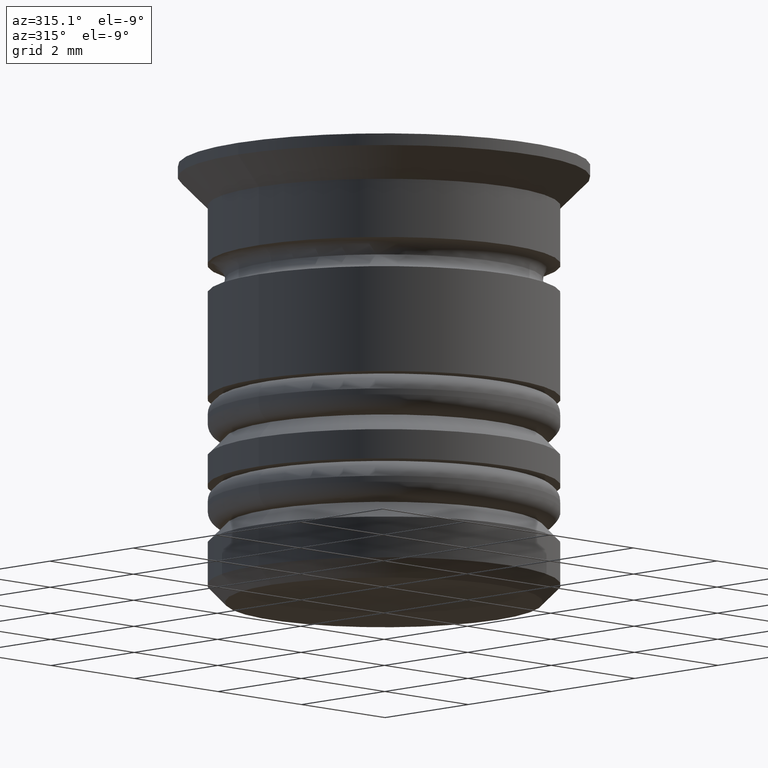
[diagram: clean part render]
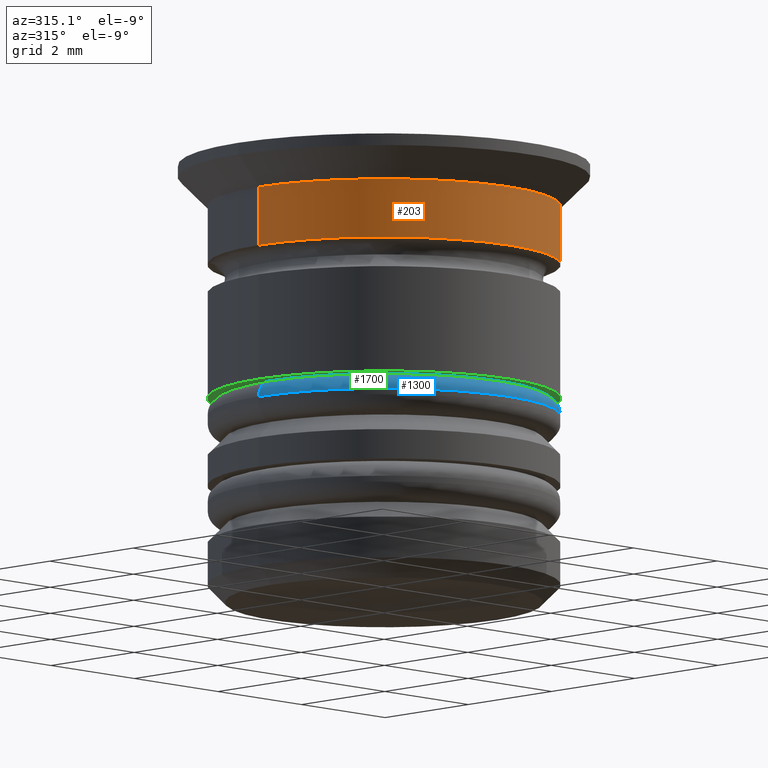
[diagram: same view with three faces highlighted in distinct colors, each labeled with its STEP entity id]
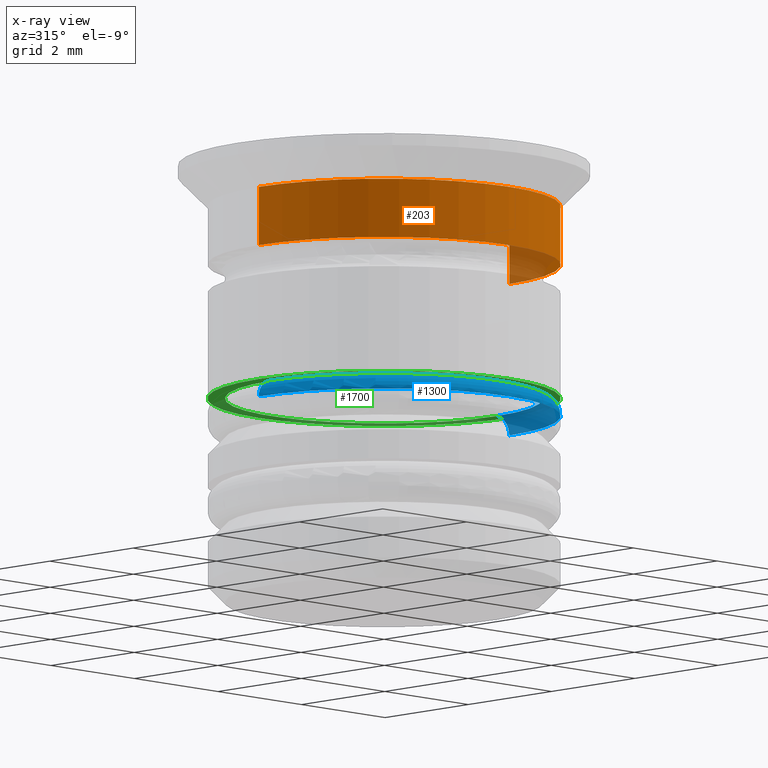
[diagram: x-ray of the same camera — body ghosted, the three highlighted faces saturated]
A machine part, auxiliary view with three faces highlighted in distinct colors.
The next image is the same camera in x-ray (body ghosted, the three faces saturated) — at least one of them is partly hidden behind the body in this view.
Their STEP definitions:

[orange] entity #203 — the highlighted cylindrical surface (partial cylindrical patch) has radius 3 mm, axis along (-0, -0, 1).
#16 = DIRECTION ( 'NONE',  ( -0.000000000000000000, -0.000000000000000000, 1.000000000000000000 ) ) ;
#80 = EDGE_CURVE ( 'NONE', #1542, #1002, #957, .T. ) ;
#100 = CARTESIAN_POINT ( 'NONE',  ( -2.999999999999999556, 3.673940397442059375E-16, 0.000000000000000000 ) ) ;
#161 = DIRECTION ( 'NONE',  ( -0.000000000000000000, -0.000000000000000000, 1.000000000000000000 ) ) ;
#203 = ADVANCED_FACE ( 'NONE', ( #1709 ), #845, .T. ) ;
#219 = EDGE_CURVE ( 'NONE', #1311, #752, #1695, .T. ) ;
#245 = CARTESIAN_POINT ( 'NONE',  ( 2.999999999999999556, 0.000000000000000000, -1.700000000000000178 ) ) ;
#313 = ORIENTED_EDGE ( 'NONE', *, *, #80, .F. ) ;
#379 = LINE ( 'NONE', #100, #558 ) ;
#410 = CARTESIAN_POINT ( 'NONE',  ( 0.000000000000000000, 0.000000000000000000, -1.700000000000000178 ) ) ;
#451 = DIRECTION ( 'NONE',  ( 1.000000000000000000, 0.000000000000000000, 0.000000000000000000 ) ) ;
#514 = EDGE_CURVE ( 'NONE', #1311, #1542, #379, .T. ) ;
#555 = AXIS2_PLACEMENT_3D ( 'NONE', #410, #574, #451 ) ;
#558 = VECTOR ( 'NONE', #1081, 1000.000000000000000 ) ;
#574 = DIRECTION ( 'NONE',  ( -0.000000000000000000, -0.000000000000000000, 1.000000000000000000 ) ) ;
#607 = CARTESIAN_POINT ( 'NONE',  ( -2.999999999999999556, 3.673940397442059375E-16, -0.6999999999999999556 ) ) ;
#625 = AXIS2_PLACEMENT_3D ( 'NONE', #713, #1272, #1678 ) ;
#697 = LINE ( 'NONE', #1421, #1470 ) ;
#713 = CARTESIAN_POINT ( 'NONE',  ( 0.000000000000000000, 0.000000000000000000, 0.000000000000000000 ) ) ;
#724 = CARTESIAN_POINT ( 'NONE',  ( -2.999999999999999556, 3.673940397442059375E-16, -1.700000000000000178 ) ) ;
#752 = VERTEX_POINT ( 'NONE', #245 ) ;
#837 = DIRECTION ( 'NONE',  ( 1.000000000000000000, 0.000000000000000000, 0.000000000000000000 ) ) ;
#845 = CYLINDRICAL_SURFACE ( 'NONE', #625, 2.999999999999999556 ) ;
#937 = AXIS2_PLACEMENT_3D ( 'NONE', #1123, #16, #837 ) ;
#957 = CIRCLE ( 'NONE', #937, 2.999999999999999556 ) ;
#1002 = VERTEX_POINT ( 'NONE', #1819 ) ;
#1081 = DIRECTION ( 'NONE',  ( -0.000000000000000000, -0.000000000000000000, 1.000000000000000000 ) ) ;
#1123 = CARTESIAN_POINT ( 'NONE',  ( 0.000000000000000000, 0.000000000000000000, -0.6999999999999999556 ) ) ;
#1229 = ORIENTED_EDGE ( 'NONE', *, *, #514, .F. ) ;
#1272 = DIRECTION ( 'NONE',  ( -0.000000000000000000, -0.000000000000000000, 1.000000000000000000 ) ) ;
#1311 = VERTEX_POINT ( 'NONE', #724 ) ;
#1367 = EDGE_CURVE ( 'NONE', #752, #1002, #697, .T. ) ;
#1421 = CARTESIAN_POINT ( 'NONE',  ( 2.999999999999999556, 0.000000000000000000, 0.000000000000000000 ) ) ;
#1436 = EDGE_LOOP ( 'NONE', ( #1229, #1532, #1588, #313 ) ) ;
#1470 = VECTOR ( 'NONE', #161, 1000.000000000000000 ) ;
#1532 = ORIENTED_EDGE ( 'NONE', *, *, #219, .T. ) ;
#1542 = VERTEX_POINT ( 'NONE', #607 ) ;
#1588 = ORIENTED_EDGE ( 'NONE', *, *, #1367, .T. ) ;
#1678 = DIRECTION ( 'NONE',  ( 1.000000000000000000, 0.000000000000000000, 0.000000000000000000 ) ) ;
#1695 = CIRCLE ( 'NONE', #555, 2.999999999999999556 ) ;
#1709 = FACE_OUTER_BOUND ( 'NONE', #1436, .T. ) ;
#1819 = CARTESIAN_POINT ( 'NONE',  ( 2.999999999999999556, 0.000000000000000000, -0.6999999999999999556 ) ) ;

[blue] entity #1300 — the highlighted toroidal blend (fillet) surface has major radius 2.7 mm and minor (blend) radius 0.3 mm.
#85 = ORIENTED_EDGE ( 'NONE', *, *, #867, .F. ) ;
#124 = CARTESIAN_POINT ( 'NONE',  ( 0.000000000000000000, 0.000000000000000000, -4.000000000000000000 ) ) ;
#140 = DIRECTION ( 'NONE',  ( -1.000000000000000000, 0.000000000000000000, 0.000000000000000000 ) ) ;
#238 = AXIS2_PLACEMENT_3D ( 'NONE', #124, #1676, #140 ) ;
#309 = CARTESIAN_POINT ( 'NONE',  ( 2.700000000000001510, 3.490243377569958033E-16, -4.000000000000000000 ) ) ;
#377 = ORIENTED_EDGE ( 'NONE', *, *, #1076, .F. ) ;
#382 = CIRCLE ( 'NONE', #961, 0.2999999999999999334 ) ;
#412 = EDGE_CURVE ( 'NONE', #456, #1482, #1178, .T. ) ;
#416 = DIRECTION ( 'NONE',  ( 0.000000000000000000, 0.000000000000000000, -1.000000000000000000 ) ) ;
#418 = CARTESIAN_POINT ( 'NONE',  ( -2.700000000000001510, 0.000000000000000000, -4.299999999999999822 ) ) ;
#456 = VERTEX_POINT ( 'NONE', #1098 ) ;
#489 = DIRECTION ( 'NONE',  ( -1.224646799147353207E-16, 1.000000000000000000, 0.000000000000000000 ) ) ;
#619 = VERTEX_POINT ( 'NONE', #1093 ) ;
#628 = CIRCLE ( 'NONE', #238, 2.700000000000001510 ) ;
#630 = AXIS2_PLACEMENT_3D ( 'NONE', #1402, #416, #1153 ) ;
#653 = EDGE_CURVE ( 'NONE', #619, #1482, #382, .T. ) ;
#717 = FACE_OUTER_BOUND ( 'NONE', #1598, .T. ) ;
#771 = CARTESIAN_POINT ( 'NONE',  ( 2.700000000000001510, 3.306546357697855212E-16, -4.299999999999999822 ) ) ;
#791 = AXIS2_PLACEMENT_3D ( 'NONE', #1172, #917, #1741 ) ;
#812 = CARTESIAN_POINT ( 'NONE',  ( -3.000000000000001332, 3.673940397442061347E-16, -4.299999999999999822 ) ) ;
#867 = EDGE_CURVE ( 'NONE', #619, #890, #628, .T. ) ;
#890 = VERTEX_POINT ( 'NONE', #309 ) ;
#917 = DIRECTION ( 'NONE',  ( 0.000000000000000000, 0.000000000000000000, -1.000000000000000000 ) ) ;
#961 = AXIS2_PLACEMENT_3D ( 'NONE', #418, #1157, #990 ) ;
#990 = DIRECTION ( 'NONE',  ( 0.000000000000000000, 0.000000000000000000, -1.000000000000000000 ) ) ;
#1039 = DIRECTION ( 'NONE',  ( -1.000000000000000000, -1.224646799147353207E-16, 0.000000000000000000 ) ) ;
#1076 = EDGE_CURVE ( 'NONE', #890, #456, #1330, .T. ) ;
#1093 = CARTESIAN_POINT ( 'NONE',  ( -2.700000000000001510, 0.000000000000000000, -4.000000000000000000 ) ) ;
#1098 = CARTESIAN_POINT ( 'NONE',  ( 3.000000000000001332, 0.000000000000000000, -4.299999999999999822 ) ) ;
#1141 = ORIENTED_EDGE ( 'NONE', *, *, #653, .T. ) ;
#1153 = DIRECTION ( 'NONE',  ( -1.000000000000000000, 0.000000000000000000, 0.000000000000000000 ) ) ;
#1157 = DIRECTION ( 'NONE',  ( -0.000000000000000000, -1.000000000000000000, -0.000000000000000000 ) ) ;
#1172 = CARTESIAN_POINT ( 'NONE',  ( 0.000000000000000000, 0.000000000000000000, -4.299999999999999822 ) ) ;
#1178 = CIRCLE ( 'NONE', #791, 3.000000000000001332 ) ;
#1185 = TOROIDAL_SURFACE ( 'NONE', #630, 2.700000000000001510, 0.2999999999999999889 ) ;
#1300 = ADVANCED_FACE ( 'NONE', ( #717 ), #1185, .T. ) ;
#1330 = CIRCLE ( 'NONE', #1728, 0.2999999999999999334 ) ;
#1402 = CARTESIAN_POINT ( 'NONE',  ( 0.000000000000000000, 0.000000000000000000, -4.299999999999999822 ) ) ;
#1482 = VERTEX_POINT ( 'NONE', #812 ) ;
#1598 = EDGE_LOOP ( 'NONE', ( #377, #85, #1141, #1722 ) ) ;
#1676 = DIRECTION ( 'NONE',  ( -0.000000000000000000, -0.000000000000000000, 1.000000000000000000 ) ) ;
#1722 = ORIENTED_EDGE ( 'NONE', *, *, #412, .F. ) ;
#1728 = AXIS2_PLACEMENT_3D ( 'NONE', #771, #489, #1039 ) ;
#1741 = DIRECTION ( 'NONE',  ( -1.000000000000000000, 0.000000000000000000, 0.000000000000000000 ) ) ;

[green] entity #1700 — the highlighted planar face has unit normal (0, -0, 1).
#23 = VERTEX_POINT ( 'NONE', #1792 ) ;
#113 = AXIS2_PLACEMENT_3D ( 'NONE', #284, #409, #827 ) ;
#172 = CIRCLE ( 'NONE', #258, 3.000000000000000888 ) ;
#211 = EDGE_LOOP ( 'NONE', ( #935, #229 ) ) ;
#229 = ORIENTED_EDGE ( 'NONE', *, *, #253, .F. ) ;
#253 = EDGE_CURVE ( 'NONE', #955, #23, #172, .T. ) ;
#258 = AXIS2_PLACEMENT_3D ( 'NONE', #1259, #419, #1686 ) ;
#275 = DIRECTION ( 'NONE',  ( 1.000000000000000000, 0.000000000000000000, 0.000000000000000000 ) ) ;
#284 = CARTESIAN_POINT ( 'NONE',  ( 0.000000000000000000, 0.000000000000000000, -4.000000000000000000 ) ) ;
#361 = VERTEX_POINT ( 'NONE', #1317 ) ;
#409 = DIRECTION ( 'NONE',  ( -0.000000000000000000, -0.000000000000000000, 1.000000000000000000 ) ) ;
#419 = DIRECTION ( 'NONE',  ( -0.000000000000000000, -0.000000000000000000, 1.000000000000000000 ) ) ;
#496 = EDGE_LOOP ( 'NONE', ( #870, #1719 ) ) ;
#658 = AXIS2_PLACEMENT_3D ( 'NONE', #948, #814, #1629 ) ;
#686 = EDGE_CURVE ( 'NONE', #798, #361, #795, .T. ) ;
#782 = EDGE_CURVE ( 'NONE', #361, #798, #1758, .T. ) ;
#794 = CIRCLE ( 'NONE', #1726, 3.000000000000000888 ) ;
#795 = CIRCLE ( 'NONE', #113, 2.700000000000000178 ) ;
#798 = VERTEX_POINT ( 'NONE', #1492 ) ;
#814 = DIRECTION ( 'NONE',  ( -0.000000000000000000, -0.000000000000000000, 1.000000000000000000 ) ) ;
#827 = DIRECTION ( 'NONE',  ( 1.000000000000000000, 0.000000000000000000, 0.000000000000000000 ) ) ;
#870 = ORIENTED_EDGE ( 'NONE', *, *, #686, .T. ) ;
#935 = ORIENTED_EDGE ( 'NONE', *, *, #1625, .F. ) ;
#940 = AXIS2_PLACEMENT_3D ( 'NONE', #1410, #1099, #954 ) ;
#948 = CARTESIAN_POINT ( 'NONE',  ( 0.000000000000000000, 0.000000000000000000, -4.000000000000000000 ) ) ;
#954 = DIRECTION ( 'NONE',  ( 1.000000000000000000, 0.000000000000000000, 0.000000000000000000 ) ) ;
#955 = VERTEX_POINT ( 'NONE', #1302 ) ;
#1099 = DIRECTION ( 'NONE',  ( 0.000000000000000000, -0.000000000000000000, 1.000000000000000000 ) ) ;
#1108 = PLANE ( 'NONE',  #940 ) ;
#1135 = CARTESIAN_POINT ( 'NONE',  ( 0.000000000000000000, 0.000000000000000000, -4.000000000000000000 ) ) ;
#1259 = CARTESIAN_POINT ( 'NONE',  ( 0.000000000000000000, 0.000000000000000000, -4.000000000000000000 ) ) ;
#1282 = FACE_OUTER_BOUND ( 'NONE', #211, .T. ) ;
#1302 = CARTESIAN_POINT ( 'NONE',  ( -3.000000000000000888, 3.673940397442060854E-16, -4.000000000000000000 ) ) ;
#1317 = CARTESIAN_POINT ( 'NONE',  ( -2.700000000000000178, 3.306546357697853733E-16, -4.000000000000000000 ) ) ;
#1410 = CARTESIAN_POINT ( 'NONE',  ( 0.000000000000000000, 2.700000000000000178, -4.000000000000000000 ) ) ;
#1492 = CARTESIAN_POINT ( 'NONE',  ( 2.700000000000000178, 0.000000000000000000, -4.000000000000000000 ) ) ;
#1520 = DIRECTION ( 'NONE',  ( -0.000000000000000000, -0.000000000000000000, 1.000000000000000000 ) ) ;
#1625 = EDGE_CURVE ( 'NONE', #23, #955, #794, .T. ) ;
#1629 = DIRECTION ( 'NONE',  ( 1.000000000000000000, 0.000000000000000000, 0.000000000000000000 ) ) ;
#1671 = FACE_BOUND ( 'NONE', #496, .T. ) ;
#1686 = DIRECTION ( 'NONE',  ( 1.000000000000000000, 0.000000000000000000, 0.000000000000000000 ) ) ;
#1700 = ADVANCED_FACE ( 'NONE', ( #1282, #1671 ), #1108, .F. ) ;
#1719 = ORIENTED_EDGE ( 'NONE', *, *, #782, .T. ) ;
#1726 = AXIS2_PLACEMENT_3D ( 'NONE', #1135, #1520, #275 ) ;
#1758 = CIRCLE ( 'NONE', #658, 2.700000000000000178 ) ;
#1792 = CARTESIAN_POINT ( 'NONE',  ( 3.000000000000000888, 0.000000000000000000, -4.000000000000000000 ) ) ;